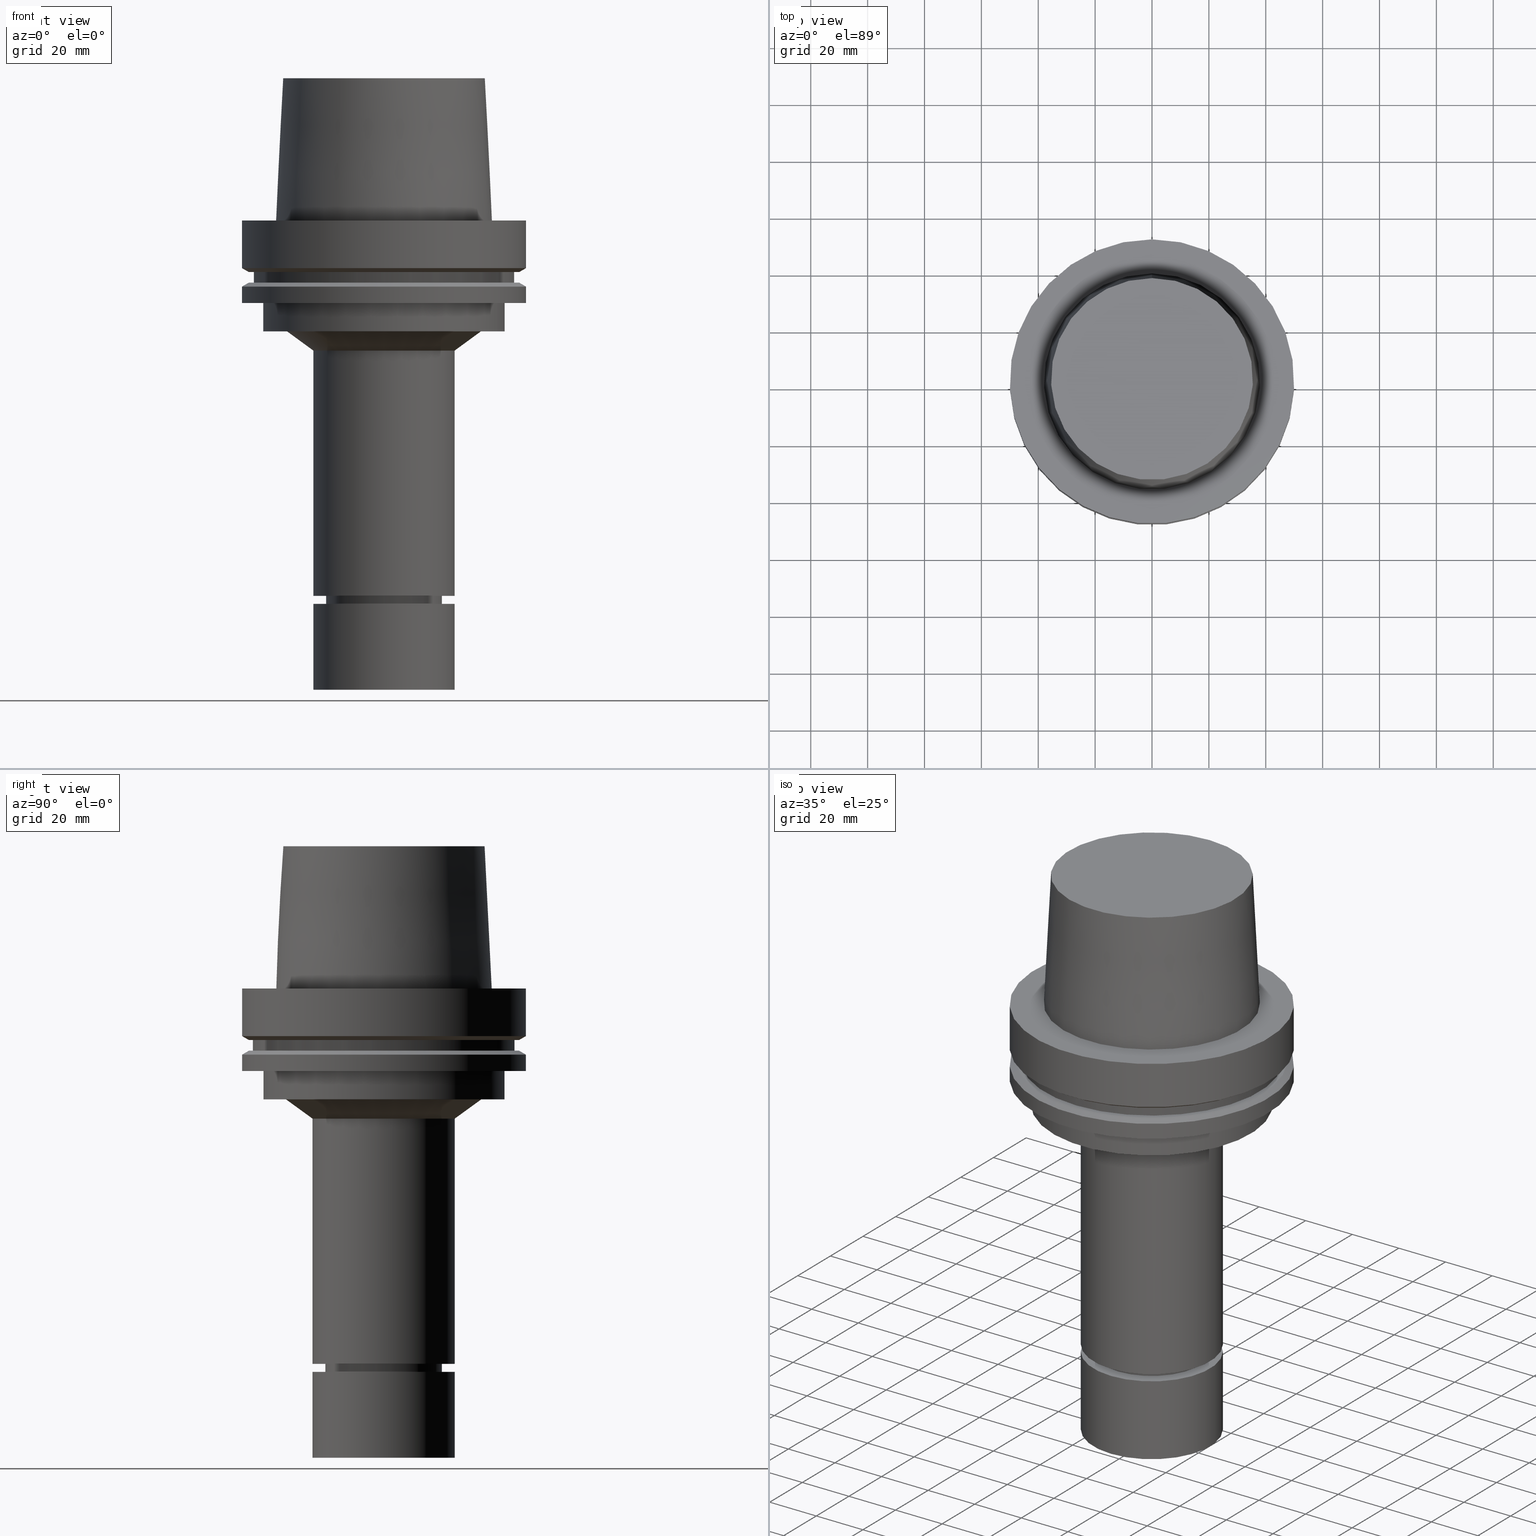
[diagram: canonical four-view strip — front | top / right | iso, engineering-drawing reading convention]
A machine part, canonical four-view strip (front | top / right | iso — engineering-drawing reading convention). The complete STEP part file that produces these views, byte-faithful:
ISO-10303-21;
HEADER;
FILE_DESCRIPTION((''),'1');
FILE_NAME('U:/Translate/02_3D_Field-HP\X2\FF71FF6FFF8CFF9F5916\X0\2013/02_Step_Field-HP\X2\FF71FF6FFF8CFF9F5916\X0\2013/HSK-A100-MEGAER32-165NL.stp','2016-06-22T04:05:55',(''),(''),'Spatial Interop R21 SP3','Kubotek KeyCreator 2011 V10.0.2 (22737)',' ');
FILE_SCHEMA(('automotive_design'));
ENDSEC;
DATA;
#1=MECHANICAL_DESIGN_GEOMETRIC_PRESENTATION_REPRESENTATION(' ',(#14,#15,#16,#17,#18,#19,#20,#21,#22,#23,#24,#25,#26,#27,#28,#29,#30,#31,#32,#33,#34,#35,#36,#37,#38,#39,#40,#41,#42,#43,#44,#45,#46,#47,#48,#49,#50,#51,#52,#53,#54,#55,#56,#57,#58,#59,#60,#61),#10);
#2=PRODUCT_DEFINITION_CONTEXT('',#62,'design');
#3=APPLICATION_PROTOCOL_DEFINITION('INTERNATIONAL STANDARD','automotive_design',1994,#62);
#4=PRODUCT_CATEGORY_RELATIONSHIP('NONE','NONE',#63,#64);
#5=SHAPE_DEFINITION_REPRESENTATION(#65,#66);
#6=PRODUCT_DEFINITION_CONTEXT('',#67,'design');
#7=APPLICATION_PROTOCOL_DEFINITION('INTERNATIONAL STANDARD','automotive_design',1994,#67);
#8=PRODUCT_CATEGORY_RELATIONSHIP('NONE','NONE',#68,#69);
#9=SHAPE_DEFINITION_REPRESENTATION(#70,#71);
#10= (GEOMETRIC_REPRESENTATION_CONTEXT(3)GLOBAL_UNCERTAINTY_ASSIGNED_CONTEXT((#74))GLOBAL_UNIT_ASSIGNED_CONTEXT((#76,#77,#78))REPRESENTATION_CONTEXT('NONE','WORKSPACE'));
#14=STYLED_ITEM('',(#80,#81),#82);
#15=STYLED_ITEM('',(#83),#84);
#16=STYLED_ITEM('',(#85),#86);
#17=STYLED_ITEM('',(#87),#88);
#18=STYLED_ITEM('',(#89,#90),#91);
#19=STYLED_ITEM('',(#92,#93),#94);
#20=STYLED_ITEM('',(#95,#96),#97);
#21=STYLED_ITEM('',(#98),#99);
#22=STYLED_ITEM('',(#100),#101);
#23=STYLED_ITEM('',(#102,#103),#104);
#24=STYLED_ITEM('',(#105,#106),#107);
#25=STYLED_ITEM('',(#108),#109);
#26=STYLED_ITEM('',(#110),#111);
#27=STYLED_ITEM('',(#112),#113);
#28=STYLED_ITEM('',(#114,#115),#116);
#29=STYLED_ITEM('',(#117),#118);
#30=STYLED_ITEM('',(#119),#120);
#31=STYLED_ITEM('',(#121),#122);
#32=STYLED_ITEM('',(#123,#124),#125);
#33=STYLED_ITEM('',(#126,#127),#128);
#34=STYLED_ITEM('',(#129),#130);
#35=STYLED_ITEM('',(#131,#132),#133);
#36=STYLED_ITEM('',(#134,#135),#136);
#37=STYLED_ITEM('',(#137,#138),#139);
#38=STYLED_ITEM('',(#140,#141),#142);
#39=STYLED_ITEM('',(#143,#144),#145);
#40=STYLED_ITEM('',(#146,#147),#148);
#41=STYLED_ITEM('',(#149),#150);
#42=STYLED_ITEM('',(#151),#152);
#43=STYLED_ITEM('',(#153),#154);
#44=STYLED_ITEM('',(#155,#156),#157);
#45=STYLED_ITEM('',(#158),#159);
#46=STYLED_ITEM('',(#160,#161),#162);
#47=STYLED_ITEM('',(#163,#164),#165);
#48=STYLED_ITEM('',(#166),#167);
#49=STYLED_ITEM('',(#168,#169),#170);
#50=STYLED_ITEM('',(#171,#172),#173);
#51=STYLED_ITEM('',(#174,#175),#176);
#52=STYLED_ITEM('',(#177),#178);
#53=STYLED_ITEM('',(#179),#180);
#54=STYLED_ITEM('',(#181),#182);
#55=STYLED_ITEM('',(#183,#184),#185);
#56=STYLED_ITEM('',(#186,#187),#188);
#57=STYLED_ITEM('',(#189),#190);
#58=STYLED_ITEM('',(#191,#192),#193);
#59=STYLED_ITEM('',(#194,#195),#196);
#60=STYLED_ITEM('',(#197),#198);
#61=STYLED_ITEM('',(#199,#200),#201);
#62=APPLICATION_CONTEXT(' ');
#63=PRODUCT_CATEGORY('part','NONE');
#64=PRODUCT_RELATED_PRODUCT_CATEGORY('detail',' ',(#202));
#65=PRODUCT_DEFINITION_SHAPE('NONE','NONE',#203);
#66=ADVANCED_BREP_SHAPE_REPRESENTATION('Unnamed[1]',(#94,#204),#10);
#67=APPLICATION_CONTEXT(' ');
#68=PRODUCT_CATEGORY('part','NONE');
#69=PRODUCT_RELATED_PRODUCT_CATEGORY('detail',' ',(#205));
#70=PRODUCT_DEFINITION_SHAPE('NONE','NONE',#206);
#71=ADVANCED_BREP_SHAPE_REPRESENTATION('Unnamed[1]',(#185,#207),#10);
#74=UNCERTAINTY_MEASURE_WITH_UNIT(LENGTH_MEASURE(1.0E-006),#76,'','');
#76= (CONVERSION_BASED_UNIT('MILLIMETRE',#210)LENGTH_UNIT()NAMED_UNIT(#213));
#77= (NAMED_UNIT(#215)PLANE_ANGLE_UNIT()SI_UNIT($,.RADIAN.));
#78= (NAMED_UNIT(#215)SOLID_ANGLE_UNIT()SI_UNIT($,.STERADIAN.));
#80=PRESENTATION_STYLE_ASSIGNMENT((#221));
#81=PRESENTATION_STYLE_ASSIGNMENT((#222));
#82=ADVANCED_FACE('Unnamed[1]',(#223,#224),#225,.T.);
#83=PRESENTATION_STYLE_ASSIGNMENT((#226));
#84=EDGE_CURVE('Unnamed[1]',#227,#227,#228,.T.);
#85=PRESENTATION_STYLE_ASSIGNMENT((#229));
#86=EDGE_CURVE('Unnamed[1]',#230,#230,#231,.T.);
#87=PRESENTATION_STYLE_ASSIGNMENT((#232));
#88=EDGE_CURVE('Unnamed[1]',#233,#233,#234,.T.);
#89=PRESENTATION_STYLE_ASSIGNMENT((#235));
#90=PRESENTATION_STYLE_ASSIGNMENT((#236));
#91=ADVANCED_FACE('Unnamed[1]',(#237,#238),#239,.T.);
#92=PRESENTATION_STYLE_ASSIGNMENT((#240));
#93=PRESENTATION_STYLE_ASSIGNMENT((#241));
#94=MANIFOLD_SOLID_BREP('Unnamed[1]',#242);
#95=PRESENTATION_STYLE_ASSIGNMENT((#243));
#96=PRESENTATION_STYLE_ASSIGNMENT((#244));
#97=ADVANCED_FACE('Unnamed[1]',(#245,#246),#247,.T.);
#98=PRESENTATION_STYLE_ASSIGNMENT((#248));
#99=EDGE_CURVE('Unnamed[1]',#249,#249,#250,.T.);
#100=PRESENTATION_STYLE_ASSIGNMENT((#251));
#101=EDGE_CURVE('Unnamed[1]',#252,#252,#253,.T.);
#102=PRESENTATION_STYLE_ASSIGNMENT((#254));
#103=PRESENTATION_STYLE_ASSIGNMENT((#255));
#104=ADVANCED_FACE('Unnamed[1]',(#256,#257),#258,.T.);
#105=PRESENTATION_STYLE_ASSIGNMENT((#259));
#106=PRESENTATION_STYLE_ASSIGNMENT((#260));
#107=ADVANCED_FACE('Unnamed[1]',(#261,#262),#263,.T.);
#108=PRESENTATION_STYLE_ASSIGNMENT((#264));
#109=EDGE_CURVE('Unnamed[1]',#265,#265,#266,.T.);
#110=PRESENTATION_STYLE_ASSIGNMENT((#267));
#111=EDGE_CURVE('Unnamed[1]',#268,#268,#269,.T.);
#112=PRESENTATION_STYLE_ASSIGNMENT((#270));
#113=EDGE_CURVE('Unnamed[1]',#271,#271,#272,.T.);
#114=PRESENTATION_STYLE_ASSIGNMENT((#273));
#115=PRESENTATION_STYLE_ASSIGNMENT((#274));
#116=ADVANCED_FACE('Unnamed[1]',(#275,#276),#277,.T.);
#117=PRESENTATION_STYLE_ASSIGNMENT((#278));
#118=EDGE_CURVE('Unnamed[1]',#279,#279,#280,.T.);
#119=PRESENTATION_STYLE_ASSIGNMENT((#281));
#120=EDGE_CURVE('Unnamed[1]',#282,#282,#283,.T.);
#121=PRESENTATION_STYLE_ASSIGNMENT((#284));
#122=EDGE_CURVE('Unnamed[1]',#285,#285,#286,.T.);
#123=PRESENTATION_STYLE_ASSIGNMENT((#287));
#124=PRESENTATION_STYLE_ASSIGNMENT((#288));
#125=ADVANCED_FACE('Unnamed[1]',(#289,#290),#291,.T.);
#126=PRESENTATION_STYLE_ASSIGNMENT((#292));
#127=PRESENTATION_STYLE_ASSIGNMENT((#293));
#128=ADVANCED_FACE('Unnamed[1]',(#294,#295),#296,.T.);
#129=PRESENTATION_STYLE_ASSIGNMENT((#297));
#130=EDGE_CURVE('Unnamed[1]',#298,#298,#299,.T.);
#131=PRESENTATION_STYLE_ASSIGNMENT((#300));
#132=PRESENTATION_STYLE_ASSIGNMENT((#301));
#133=ADVANCED_FACE('Unnamed[1]',(#302),#303,.T.);
#134=PRESENTATION_STYLE_ASSIGNMENT((#304));
#135=PRESENTATION_STYLE_ASSIGNMENT((#305));
#136=ADVANCED_FACE('Unnamed[1]',(#306,#307),#308,.T.);
#137=PRESENTATION_STYLE_ASSIGNMENT((#309));
#138=PRESENTATION_STYLE_ASSIGNMENT((#310));
#139=ADVANCED_FACE('Unnamed[1]',(#311),#312,.T.);
#140=PRESENTATION_STYLE_ASSIGNMENT((#313));
#141=PRESENTATION_STYLE_ASSIGNMENT((#314));
#142=ADVANCED_FACE('Unnamed[1]',(#315),#316,.T.);
#143=PRESENTATION_STYLE_ASSIGNMENT((#317));
#144=PRESENTATION_STYLE_ASSIGNMENT((#318));
#145=ADVANCED_FACE('Unnamed[1]',(#319,#320),#321,.T.);
#146=PRESENTATION_STYLE_ASSIGNMENT((#322));
#147=PRESENTATION_STYLE_ASSIGNMENT((#323));
#148=ADVANCED_FACE('Unnamed[1]',(#324,#325),#326,.T.);
#149=PRESENTATION_STYLE_ASSIGNMENT((#327));
#150=EDGE_CURVE('Unnamed[1]',#328,#328,#329,.T.);
#151=PRESENTATION_STYLE_ASSIGNMENT((#330));
#152=EDGE_CURVE('Unnamed[1]',#331,#331,#332,.T.);
#153=PRESENTATION_STYLE_ASSIGNMENT((#333));
#154=EDGE_CURVE('Unnamed[1]',#334,#334,#335,.T.);
#155=PRESENTATION_STYLE_ASSIGNMENT((#336));
#156=PRESENTATION_STYLE_ASSIGNMENT((#337));
#157=ADVANCED_FACE('Unnamed[1]',(#338,#339),#340,.T.);
#158=PRESENTATION_STYLE_ASSIGNMENT((#341));
#159=EDGE_CURVE('Unnamed[1]',#342,#342,#343,.T.);
#160=PRESENTATION_STYLE_ASSIGNMENT((#344));
#161=PRESENTATION_STYLE_ASSIGNMENT((#345));
#162=ADVANCED_FACE('Unnamed[1]',(#346,#347),#348,.T.);
#163=PRESENTATION_STYLE_ASSIGNMENT((#349));
#164=PRESENTATION_STYLE_ASSIGNMENT((#350));
#165=ADVANCED_FACE('Unnamed[1]',(#351,#352),#353,.T.);
#166=PRESENTATION_STYLE_ASSIGNMENT((#354));
#167=EDGE_CURVE('Unnamed[1]',#355,#355,#356,.T.);
#168=PRESENTATION_STYLE_ASSIGNMENT((#357));
#169=PRESENTATION_STYLE_ASSIGNMENT((#358));
#170=ADVANCED_FACE('Unnamed[1]',(#359,#360),#361,.T.);
#171=PRESENTATION_STYLE_ASSIGNMENT((#362));
#172=PRESENTATION_STYLE_ASSIGNMENT((#363));
#173=ADVANCED_FACE('Unnamed[1]',(#364,#365),#366,.T.);
#174=PRESENTATION_STYLE_ASSIGNMENT((#367));
#175=PRESENTATION_STYLE_ASSIGNMENT((#368));
#176=ADVANCED_FACE('Unnamed[1]',(#369),#370,.T.);
#177=PRESENTATION_STYLE_ASSIGNMENT((#371));
#178=EDGE_CURVE('Unnamed[1]',#372,#372,#373,.T.);
#179=PRESENTATION_STYLE_ASSIGNMENT((#374));
#180=EDGE_CURVE('Unnamed[1]',#375,#375,#376,.T.);
#181=PRESENTATION_STYLE_ASSIGNMENT((#377));
#182=EDGE_CURVE('Unnamed[1]',#378,#378,#379,.T.);
#183=PRESENTATION_STYLE_ASSIGNMENT((#380));
#184=PRESENTATION_STYLE_ASSIGNMENT((#381));
#185=MANIFOLD_SOLID_BREP('Unnamed[1]',#382);
#186=PRESENTATION_STYLE_ASSIGNMENT((#383));
#187=PRESENTATION_STYLE_ASSIGNMENT((#384));
#188=ADVANCED_FACE('Unnamed[1]',(#385,#386),#387,.T.);
#189=PRESENTATION_STYLE_ASSIGNMENT((#388));
#190=EDGE_CURVE('Unnamed[1]',#389,#389,#390,.T.);
#191=PRESENTATION_STYLE_ASSIGNMENT((#391));
#192=PRESENTATION_STYLE_ASSIGNMENT((#392));
#193=ADVANCED_FACE('Unnamed[1]',(#393,#394),#395,.T.);
#194=PRESENTATION_STYLE_ASSIGNMENT((#396));
#195=PRESENTATION_STYLE_ASSIGNMENT((#397));
#196=ADVANCED_FACE('Unnamed[1]',(#398,#399),#400,.T.);
#197=PRESENTATION_STYLE_ASSIGNMENT((#401));
#198=EDGE_CURVE('Unnamed[1]',#402,#402,#403,.T.);
#199=PRESENTATION_STYLE_ASSIGNMENT((#404));
#200=PRESENTATION_STYLE_ASSIGNMENT((#405));
#201=ADVANCED_FACE('Unnamed[1]',(#406,#407),#408,.T.);
#202=PRODUCT('Unnamed[1]','Unnamed[1]','PART-Unnamed[1]-DESC',(#409));
#203=PRODUCT_DEFINITION('NONE','NONE',#410,#2);
#204=AXIS2_PLACEMENT_3D('',#411,#412,#413);
#205=PRODUCT('Unnamed[1]','Unnamed[1]','PART-Unnamed[1]-DESC',(#414));
#206=PRODUCT_DEFINITION('NONE','NONE',#415,#6);
#207=AXIS2_PLACEMENT_3D('',#416,#417,#418);
#210=LENGTH_MEASURE_WITH_UNIT(LENGTH_MEASURE(1.0),#419);
#213=DIMENSIONAL_EXPONENTS(1.0,0.0,0.0,0.0,0.0,0.0,0.0);
#215=DIMENSIONAL_EXPONENTS(0.0,0.0,0.0,0.0,0.0,0.0,0.0);
#221=SURFACE_STYLE_USAGE(.BOTH.,#420);
#222=CURVE_STYLE('',#421,POSITIVE_LENGTH_MEASURE(1000.0),#422);
#223=FACE_BOUND('',#423,.T.);
#224=FACE_OUTER_BOUND('',#424,.T.);
#225=PLANE('',#425);
#226=CURVE_STYLE('',#426,POSITIVE_LENGTH_MEASURE(1000.0),#427);
#227=VERTEX_POINT('',#428);
#228=CIRCLE('',#429,20.0);
#229=CURVE_STYLE('',#430,POSITIVE_LENGTH_MEASURE(1000.0),#431);
#230=VERTEX_POINT('',#432);
#231=CIRCLE('',#433,25.0);
#232=CURVE_STYLE('',#434,POSITIVE_LENGTH_MEASURE(1000.0),#435);
#233=VERTEX_POINT('',#436);
#234=CIRCLE('',#437,46.0);
#235=SURFACE_STYLE_USAGE(.BOTH.,#438);
#236=CURVE_STYLE('',#439,POSITIVE_LENGTH_MEASURE(1000.0),#440);
#237=FACE_BOUND('',#441,.T.);
#238=FACE_BOUND('',#442,.T.);
#239=CYLINDRICAL_SURFACE('',#443,46.0);
#240=SURFACE_STYLE_USAGE(.BOTH.,#444);
#241=CURVE_STYLE('',#445,POSITIVE_LENGTH_MEASURE(1000.0),#446);
#242=CLOSED_SHELL('',(#133,#97,#157,#148,#162,#188,#91,#170,#128,#104,#125,#193,#145,#173,#107,#82,#136,#165,#116,#201,#176));
#243=SURFACE_STYLE_USAGE(.BOTH.,#447);
#244=CURVE_STYLE('',#448,POSITIVE_LENGTH_MEASURE(1000.0),#449);
#245=FACE_BOUND('',#450,.T.);
#246=FACE_BOUND('',#451,.T.);
#247=CONICAL_SURFACE('',#452,36.7500000007484,0.0499583956894843);
#248=CURVE_STYLE('',#453,POSITIVE_LENGTH_MEASURE(1000.0),#454);
#249=VERTEX_POINT('',#455);
#250=CIRCLE('',#456,50.0);
#251=CURVE_STYLE('',#457,POSITIVE_LENGTH_MEASURE(1000.0),#458);
#252=VERTEX_POINT('',#459);
#253=CIRCLE('',#460,47.62259526);
#254=SURFACE_STYLE_USAGE(.BOTH.,#461);
#255=CURVE_STYLE('',#462,POSITIVE_LENGTH_MEASURE(1000.0),#463);
#256=FACE_BOUND('',#464,.T.);
#257=FACE_BOUND('',#465,.T.);
#258=CYLINDRICAL_SURFACE('',#466,50.0);
#259=SURFACE_STYLE_USAGE(.BOTH.,#467);
#260=CURVE_STYLE('',#468,POSITIVE_LENGTH_MEASURE(1000.0),#469);
#261=FACE_BOUND('',#470,.T.);
#262=FACE_BOUND('',#471,.T.);
#263=CYLINDRICAL_SURFACE('',#472,25.0);
#264=CURVE_STYLE('',#473,POSITIVE_LENGTH_MEASURE(1000.0),#474);
#265=VERTEX_POINT('',#475);
#266=CIRCLE('',#476,25.0);
#267=CURVE_STYLE('',#477,POSITIVE_LENGTH_MEASURE(1000.0),#478);
#268=VERTEX_POINT('',#479);
#269=CIRCLE('',#480,20.4999999999911);
#270=CURVE_STYLE('',#481,POSITIVE_LENGTH_MEASURE(1000.0),#482);
#271=VERTEX_POINT('',#483);
#272=CIRCLE('',#484,35.5000000015618);
#273=SURFACE_STYLE_USAGE(.BOTH.,#485);
#274=CURVE_STYLE('',#486,POSITIVE_LENGTH_MEASURE(1000.0),#487);
#275=FACE_BOUND('',#488,.T.);
#276=FACE_BOUND('',#489,.T.);
#277=CYLINDRICAL_SURFACE('',#490,20.0);
#278=CURVE_STYLE('',#491,POSITIVE_LENGTH_MEASURE(1000.0),#492);
#279=VERTEX_POINT('',#493);
#280=CIRCLE('',#494,42.5);
#281=CURVE_STYLE('',#495,POSITIVE_LENGTH_MEASURE(1000.0),#496);
#282=VERTEX_POINT('',#497);
#283=CIRCLE('',#498,20.5000000000012);
#284=CURVE_STYLE('',#499,POSITIVE_LENGTH_MEASURE(1000.0),#500);
#285=VERTEX_POINT('',#501);
#286=CIRCLE('',#502,50.0);
#287=SURFACE_STYLE_USAGE(.BOTH.,#503);
#288=CURVE_STYLE('',#504,POSITIVE_LENGTH_MEASURE(1000.0),#505);
#289=FACE_BOUND('',#506,.T.);
#290=FACE_OUTER_BOUND('',#507,.T.);
#291=PLANE('',#508);
#292=SURFACE_STYLE_USAGE(.BOTH.,#509);
#293=CURVE_STYLE('',#510,POSITIVE_LENGTH_MEASURE(1000.0),#511);
#294=FACE_BOUND('',#512,.T.);
#295=FACE_BOUND('',#513,.T.);
#296=CONICAL_SURFACE('',#514,48.81129763,1.04719755328238);
#297=CURVE_STYLE('',#515,POSITIVE_LENGTH_MEASURE(1000.0),#516);
#298=VERTEX_POINT('',#517);
#299=CIRCLE('',#518,25.0);
#300=SURFACE_STYLE_USAGE(.BOTH.,#519);
#301=CURVE_STYLE('',#520,POSITIVE_LENGTH_MEASURE(1000.0),#521);
#302=FACE_OUTER_BOUND('',#522,.T.);
#303=PLANE('',#523);
#304=SURFACE_STYLE_USAGE(.BOTH.,#524);
#305=CURVE_STYLE('',#525,POSITIVE_LENGTH_MEASURE(1000.0),#526);
#306=FACE_BOUND('',#527,.T.);
#307=FACE_BOUND('',#528,.T.);
#308=CYLINDRICAL_SURFACE('',#529,20.4999999999961);
#309=SURFACE_STYLE_USAGE(.BOTH.,#530);
#310=CURVE_STYLE('',#531,POSITIVE_LENGTH_MEASURE(1000.0),#532);
#311=FACE_OUTER_BOUND('',#533,.T.);
#312=PLANE('',#534);
#313=SURFACE_STYLE_USAGE(.BOTH.,#535);
#314=CURVE_STYLE('',#536,POSITIVE_LENGTH_MEASURE(1000.0),#537);
#315=FACE_OUTER_BOUND('',#538,.T.);
#316=PLANE('',#539);
#317=SURFACE_STYLE_USAGE(.BOTH.,#540);
#318=CURVE_STYLE('',#541,POSITIVE_LENGTH_MEASURE(1000.0),#542);
#319=FACE_BOUND('',#543,.T.);
#320=FACE_OUTER_BOUND('',#544,.T.);
#321=PLANE('',#545);
#322=SURFACE_STYLE_USAGE(.BOTH.,#546);
#323=CURVE_STYLE('',#547,POSITIVE_LENGTH_MEASURE(1000.0),#548);
#324=FACE_BOUND('',#549,.T.);
#325=FACE_BOUND('',#550,.T.);
#326=CYLINDRICAL_SURFACE('',#551,50.0);
#327=CURVE_STYLE('',#552,POSITIVE_LENGTH_MEASURE(1000.0),#553);
#328=VERTEX_POINT('',#554);
#329=CIRCLE('',#555,50.0);
#330=CURVE_STYLE('',#556,POSITIVE_LENGTH_MEASURE(1000.0),#557);
#331=VERTEX_POINT('',#558);
#332=CIRCLE('',#559,34.3193294456171);
#333=CURVE_STYLE('',#560,POSITIVE_LENGTH_MEASURE(1000.0),#561);
#334=VERTEX_POINT('',#562);
#335=CIRCLE('',#563,50.0);
#336=SURFACE_STYLE_USAGE(.BOTH.,#564);
#337=CURVE_STYLE('',#565,POSITIVE_LENGTH_MEASURE(1000.0),#566);
#338=FACE_OUTER_BOUND('',#567,.T.);
#339=FACE_BOUND('',#568,.T.);
#340=PLANE('',#569);
#341=CURVE_STYLE('',#570,POSITIVE_LENGTH_MEASURE(1000.0),#571);
#342=VERTEX_POINT('',#572);
#343=CIRCLE('',#573,25.0);
#344=SURFACE_STYLE_USAGE(.BOTH.,#574);
#345=CURVE_STYLE('',#575,POSITIVE_LENGTH_MEASURE(1000.0),#576);
#346=FACE_BOUND('',#577,.T.);
#347=FACE_BOUND('',#578,.T.);
#348=CONICAL_SURFACE('',#579,48.81129763,1.04719755328238);
#349=SURFACE_STYLE_USAGE(.BOTH.,#580);
#350=CURVE_STYLE('',#581,POSITIVE_LENGTH_MEASURE(1000.0),#582);
#351=FACE_BOUND('',#583,.T.);
#352=FACE_BOUND('',#584,.T.);
#353=CONICAL_SURFACE('',#585,20.2500000000006,0.766162649695678);
#354=CURVE_STYLE('',#586,POSITIVE_LENGTH_MEASURE(1000.0),#587);
#355=VERTEX_POINT('',#588);
#356=CIRCLE('',#589,37.9999999999349);
#357=SURFACE_STYLE_USAGE(.BOTH.,#590);
#358=CURVE_STYLE('',#591,POSITIVE_LENGTH_MEASURE(1000.0),#592);
#359=FACE_OUTER_BOUND('',#593,.T.);
#360=FACE_BOUND('',#594,.T.);
#361=PLANE('',#595);
#362=SURFACE_STYLE_USAGE(.BOTH.,#596);
#363=CURVE_STYLE('',#597,POSITIVE_LENGTH_MEASURE(1000.0),#598);
#364=FACE_BOUND('',#599,.T.);
#365=FACE_BOUND('',#600,.T.);
#366=CONICAL_SURFACE('',#601,29.6596647228086,0.942916776538398);
#367=SURFACE_STYLE_USAGE(.BOTH.,#602);
#368=CURVE_STYLE('',#603,POSITIVE_LENGTH_MEASURE(1000.0),#604);
#369=FACE_OUTER_BOUND('',#605,.T.);
#370=PLANE('',#606);
#371=CURVE_STYLE('',#607,POSITIVE_LENGTH_MEASURE(1000.0),#608);
#372=VERTEX_POINT('',#609);
#373=CIRCLE('',#610,46.0);
#374=CURVE_STYLE('',#611,POSITIVE_LENGTH_MEASURE(1000.0),#612);
#375=VERTEX_POINT('',#613);
#376=CIRCLE('',#614,42.5);
#377=CURVE_STYLE('',#615,POSITIVE_LENGTH_MEASURE(1000.0),#616);
#378=VERTEX_POINT('',#617);
#379=CIRCLE('',#618,20.0000000000001);
#380=SURFACE_STYLE_USAGE(.BOTH.,#619);
#381=CURVE_STYLE('',#620,POSITIVE_LENGTH_MEASURE(1000.0),#621);
#382=CLOSED_SHELL('',(#139,#142,#196));
#383=SURFACE_STYLE_USAGE(.BOTH.,#622);
#384=CURVE_STYLE('',#623,POSITIVE_LENGTH_MEASURE(1000.0),#624);
#385=FACE_BOUND('',#625,.T.);
#386=FACE_OUTER_BOUND('',#626,.T.);
#387=PLANE('',#627);
#388=CURVE_STYLE('',#628,POSITIVE_LENGTH_MEASURE(1000.0),#629);
#389=VERTEX_POINT('',#630);
#390=CIRCLE('',#631,18.8999999999997);
#391=SURFACE_STYLE_USAGE(.BOTH.,#632);
#392=CURVE_STYLE('',#633,POSITIVE_LENGTH_MEASURE(1000.0),#634);
#393=FACE_BOUND('',#635,.T.);
#394=FACE_BOUND('',#636,.T.);
#395=CYLINDRICAL_SURFACE('',#637,42.5);
#396=SURFACE_STYLE_USAGE(.BOTH.,#638);
#397=CURVE_STYLE('',#639,POSITIVE_LENGTH_MEASURE(1000.0),#640);
#398=FACE_BOUND('',#641,.T.);
#399=FACE_BOUND('',#642,.T.);
#400=CYLINDRICAL_SURFACE('',#643,25.0);
#401=CURVE_STYLE('',#644,POSITIVE_LENGTH_MEASURE(1000.0),#645);
#402=VERTEX_POINT('',#646);
#403=CIRCLE('',#647,47.62259526);
#404=SURFACE_STYLE_USAGE(.BOTH.,#648);
#405=CURVE_STYLE('',#649,POSITIVE_LENGTH_MEASURE(1000.0),#650);
#406=FACE_BOUND('',#651,.T.);
#407=FACE_BOUND('',#652,.T.);
#408=CONICAL_SURFACE('',#653,19.4499999999999,0.523598775598222);
#409=PRODUCT_CONTEXT('',#62,'mechanical');
#410=PRODUCT_DEFINITION_FORMATION_WITH_SPECIFIED_SOURCE(' ','NONE',#202,.NOT_KNOWN.);
#411=CARTESIAN_POINT('',(0.0,0.0,0.0));
#412=DIRECTION('',(0.0,0.0,1.0));
#413=DIRECTION('',(1.0,0.0,0.0));
#414=PRODUCT_CONTEXT('',#67,'mechanical');
#415=PRODUCT_DEFINITION_FORMATION_WITH_SPECIFIED_SOURCE(' ','NONE',#205,.NOT_KNOWN.);
#416=CARTESIAN_POINT('',(0.0,0.0,0.0));
#417=DIRECTION('',(0.0,0.0,1.0));
#418=DIRECTION('',(1.0,0.0,0.0));
#419= (NAMED_UNIT(#213)LENGTH_UNIT()SI_UNIT(.MILLI.,.METRE.));
#420=SURFACE_SIDE_STYLE('',(#655));
#421=DRAUGHTING_PRE_DEFINED_CURVE_FONT('continuous');
#422=COLOUR_RGB('',0.0,1.0,0.0);
#423=EDGE_LOOP('',(#656));
#424=EDGE_LOOP('',(#657));
#425=AXIS2_PLACEMENT_3D('',#658,#659,#660);
#426=DRAUGHTING_PRE_DEFINED_CURVE_FONT('continuous');
#427=COLOUR_RGB('',0.0,1.0,0.0);
#428=CARTESIAN_POINT('',(8.49482973562112E-015,20.0,-138.73109767707));
#429=AXIS2_PLACEMENT_3D('',#661,#662,#663);
#430=DRAUGHTING_PRE_DEFINED_CURVE_FONT('continuous');
#431=COLOUR_RGB('',0.0,1.0,0.0);
#432=CARTESIAN_POINT('',(8.25411942625316E-015,25.0,-134.8));
#433=AXIS2_PLACEMENT_3D('',#664,#665,#666);
#434=DRAUGHTING_PRE_DEFINED_CURVE_FONT('continuous');
#435=COLOUR_RGB('',0.0,1.0,0.0);
#436=CARTESIAN_POINT('',(1.10983616172729E-015,46.0,-18.125));
#437=AXIS2_PLACEMENT_3D('',#667,#668,#669);
#438=SURFACE_SIDE_STYLE('',(#670));
#439=DRAUGHTING_PRE_DEFINED_CURVE_FONT('continuous');
#440=COLOUR_RGB('',0.0,1.0,0.0);
#441=EDGE_LOOP('',(#671));
#442=EDGE_LOOP('',(#672));
#443=AXIS2_PLACEMENT_3D('',#673,#674,#675);
#444=SURFACE_SIDE_STYLE('',(#676));
#445=DRAUGHTING_PRE_DEFINED_CURVE_FONT('continuous');
#446=COLOUR_RGB('',0.0,1.0,0.0);
#447=SURFACE_SIDE_STYLE('',(#677));
#448=DRAUGHTING_PRE_DEFINED_CURVE_FONT('continuous');
#449=COLOUR_RGB('',0.0,1.0,0.0);
#450=EDGE_LOOP('',(#678));
#451=EDGE_LOOP('',(#679));
#452=AXIS2_PLACEMENT_3D('',#680,#681,#682);
#453=DRAUGHTING_PRE_DEFINED_CURVE_FONT('continuous');
#454=COLOUR_RGB('',0.0,1.0,0.0);
#455=CARTESIAN_POINT('',(1.0257889421431E-015,50.0,-16.75240474));
#456=AXIS2_PLACEMENT_3D('',#683,#684,#685);
#457=DRAUGHTING_PRE_DEFINED_CURVE_FONT('continuous');
#458=COLOUR_RGB('',0.0,1.0,0.0);
#459=CARTESIAN_POINT('',(1.10983616172729E-015,47.62259526,-18.125));
#460=AXIS2_PLACEMENT_3D('',#686,#687,#688);
#461=SURFACE_SIDE_STYLE('',(#689));
#462=DRAUGHTING_PRE_DEFINED_CURVE_FONT('continuous');
#463=COLOUR_RGB('',0.0,1.0,0.0);
#464=EDGE_LOOP('',(#690));
#465=EDGE_LOOP('',(#691));
#466=AXIS2_PLACEMENT_3D('',#692,#693,#694);
#467=SURFACE_SIDE_STYLE('',(#695));
#468=DRAUGHTING_PRE_DEFINED_CURVE_FONT('continuous');
#469=COLOUR_RGB('',0.0,1.0,0.0);
#470=EDGE_LOOP('',(#696));
#471=EDGE_LOOP('',(#697));
#472=AXIS2_PLACEMENT_3D('',#698,#699,#700);
#473=DRAUGHTING_PRE_DEFINED_CURVE_FONT('continuous');
#474=COLOUR_RGB('',0.0,1.0,0.0);
#475=CARTESIAN_POINT('',(8.08267852271583E-015,25.0,-132.000157569404));
#476=AXIS2_PLACEMENT_3D('',#701,#702,#703);
#477=DRAUGHTING_PRE_DEFINED_CURVE_FONT('continuous');
#478=COLOUR_RGB('',0.0,1.0,0.0);
#479=CARTESIAN_POINT('',(8.08267852271585E-015,20.4999999999911,-132.000157569404));
#480=AXIS2_PLACEMENT_3D('',#704,#705,#706);
#481=DRAUGHTING_PRE_DEFINED_CURVE_FONT('continuous');
#482=COLOUR_RGB('',0.0,1.0,0.0);
#483=CARTESIAN_POINT('',(-3.06161699786838E-015,35.5000000015618,50.0));
#484=AXIS2_PLACEMENT_3D('',#707,#708,#709);
#485=SURFACE_SIDE_STYLE('',(#710));
#486=DRAUGHTING_PRE_DEFINED_CURVE_FONT('continuous');
#487=COLOUR_RGB('',0.0,1.0,0.0);
#488=EDGE_LOOP('',(#711));
#489=EDGE_LOOP('',(#712));
#490=AXIS2_PLACEMENT_3D('',#713,#714,#715);
#491=DRAUGHTING_PRE_DEFINED_CURVE_FONT('continuous');
#492=COLOUR_RGB('',0.0,1.0,0.0);
#493=CARTESIAN_POINT('',(1.77573785876366E-015,42.5,-29.0));
#494=AXIS2_PLACEMENT_3D('',#716,#717,#718);
#495=DRAUGHTING_PRE_DEFINED_CURVE_FONT('continuous');
#496=COLOUR_RGB('',0.0,1.0,0.0);
#497=CARTESIAN_POINT('',(8.46301247845942E-015,20.5000000000012,-138.2114824348));
#498=AXIS2_PLACEMENT_3D('',#719,#720,#721);
#499=DRAUGHTING_PRE_DEFINED_CURVE_FONT('continuous');
#500=COLOUR_RGB('',0.0,1.0,0.0);
#501=CARTESIAN_POINT('',(1.77573785876366E-015,50.0,-29.0));
#502=AXIS2_PLACEMENT_3D('',#722,#723,#724);
#503=SURFACE_SIDE_STYLE('',(#725));
#504=DRAUGHTING_PRE_DEFINED_CURVE_FONT('continuous');
#505=COLOUR_RGB('',0.0,1.0,0.0);
#506=EDGE_LOOP('',(#726));
#507=EDGE_LOOP('',(#727));
#508=AXIS2_PLACEMENT_3D('',#728,#729,#730);
#509=SURFACE_SIDE_STYLE('',(#731));
#510=DRAUGHTING_PRE_DEFINED_CURVE_FONT('continuous');
#511=COLOUR_RGB('',0.0,1.0,0.0);
#512=EDGE_LOOP('',(#732));
#513=EDGE_LOOP('',(#733));
#514=AXIS2_PLACEMENT_3D('',#734,#735,#736);
#515=DRAUGHTING_PRE_DEFINED_CURVE_FONT('continuous');
#516=COLOUR_RGB('',0.0,1.0,0.0);
#517=CARTESIAN_POINT('',(2.80227603553221E-015,25.0,-45.76464067));
#518=AXIS2_PLACEMENT_3D('',#737,#738,#739);
#519=SURFACE_SIDE_STYLE('',(#740));
#520=DRAUGHTING_PRE_DEFINED_CURVE_FONT('continuous');
#521=COLOUR_RGB('',0.0,1.0,0.0);
#522=EDGE_LOOP('',(#741));
#523=AXIS2_PLACEMENT_3D('',#742,#743,#744);
#524=SURFACE_SIDE_STYLE('',(#745));
#525=DRAUGHTING_PRE_DEFINED_CURVE_FONT('continuous');
#526=COLOUR_RGB('',0.0,1.0,0.0);
#527=EDGE_LOOP('',(#746));
#528=EDGE_LOOP('',(#747));
#529=AXIS2_PLACEMENT_3D('',#748,#749,#750);
#530=SURFACE_SIDE_STYLE('',(#751));
#531=DRAUGHTING_PRE_DEFINED_CURVE_FONT('continuous');
#532=COLOUR_RGB('',0.0,1.0,0.0);
#533=EDGE_LOOP('',(#752));
#534=AXIS2_PLACEMENT_3D('',#753,#754,#755);
#535=SURFACE_SIDE_STYLE('',(#756));
#536=DRAUGHTING_PRE_DEFINED_CURVE_FONT('continuous');
#537=COLOUR_RGB('',0.0,1.0,0.0);
#538=EDGE_LOOP('',(#757));
#539=AXIS2_PLACEMENT_3D('',#758,#759,#760);
#540=SURFACE_SIDE_STYLE('',(#761));
#541=DRAUGHTING_PRE_DEFINED_CURVE_FONT('continuous');
#542=COLOUR_RGB('',0.0,1.0,0.0);
#543=EDGE_LOOP('',(#762));
#544=EDGE_LOOP('',(#763));
#545=AXIS2_PLACEMENT_3D('',#764,#765,#766);
#546=SURFACE_SIDE_STYLE('',(#767));
#547=DRAUGHTING_PRE_DEFINED_CURVE_FONT('continuous');
#548=COLOUR_RGB('',0.0,1.0,0.0);
#549=EDGE_LOOP('',(#768));
#550=EDGE_LOOP('',(#769));
#551=AXIS2_PLACEMENT_3D('',#770,#771,#772);
#552=DRAUGHTING_PRE_DEFINED_CURVE_FONT('continuous');
#553=COLOUR_RGB('',0.0,1.0,0.0);
#554=CARTESIAN_POINT('',(-1.81547968506605E-031,50.0,-9.76766004263236E-016));
#555=AXIS2_PLACEMENT_3D('',#773,#774,#775);
#556=DRAUGHTING_PRE_DEFINED_CURVE_FONT('continuous');
#557=COLOUR_RGB('',0.0,1.0,0.0);
#558=CARTESIAN_POINT('',(2.38806125833734E-015,34.3193294456171,-39.0));
#559=AXIS2_PLACEMENT_3D('',#776,#777,#778);
#560=DRAUGHTING_PRE_DEFINED_CURVE_FONT('continuous');
#561=COLOUR_RGB('',0.0,1.0,0.0);
#562=CARTESIAN_POINT('',(1.42350465615161E-015,50.0,-23.24759526));
#563=AXIS2_PLACEMENT_3D('',#779,#780,#781);
#564=SURFACE_SIDE_STYLE('',(#782));
#565=DRAUGHTING_PRE_DEFINED_CURVE_FONT('continuous');
#566=COLOUR_RGB('',0.0,1.0,0.0);
#567=EDGE_LOOP('',(#783));
#568=EDGE_LOOP('',(#784));
#569=AXIS2_PLACEMENT_3D('',#785,#786,#787);
#570=DRAUGHTING_PRE_DEFINED_CURVE_FONT('continuous');
#571=COLOUR_RGB('',0.0,1.0,0.0);
#572=CARTESIAN_POINT('',(1.01033360929657E-014,25.0,-165.0));
#573=AXIS2_PLACEMENT_3D('',#788,#789,#790);
#574=SURFACE_SIDE_STYLE('',(#791));
#575=DRAUGHTING_PRE_DEFINED_CURVE_FONT('continuous');
#576=COLOUR_RGB('',0.0,1.0,0.0);
#577=EDGE_LOOP('',(#792));
#578=EDGE_LOOP('',(#793));
#579=AXIS2_PLACEMENT_3D('',#794,#795,#796);
#580=SURFACE_SIDE_STYLE('',(#797));
#581=DRAUGHTING_PRE_DEFINED_CURVE_FONT('continuous');
#582=COLOUR_RGB('',0.0,1.0,0.0);
#583=EDGE_LOOP('',(#798));
#584=EDGE_LOOP('',(#799));
#585=AXIS2_PLACEMENT_3D('',#800,#801,#802);
#586=DRAUGHTING_PRE_DEFINED_CURVE_FONT('continuous');
#587=COLOUR_RGB('',0.0,1.0,0.0);
#588=CARTESIAN_POINT('',(-3.3636548776863E-032,37.9999999999349,-2.44634216324803E-015));
#589=AXIS2_PLACEMENT_3D('',#803,#804,#805);
#590=SURFACE_SIDE_STYLE('',(#806));
#591=DRAUGHTING_PRE_DEFINED_CURVE_FONT('continuous');
#592=COLOUR_RGB('',0.0,1.0,0.0);
#593=EDGE_LOOP('',(#807));
#594=EDGE_LOOP('',(#808));
#595=AXIS2_PLACEMENT_3D('',#809,#810,#811);
#596=SURFACE_SIDE_STYLE('',(#812));
#597=DRAUGHTING_PRE_DEFINED_CURVE_FONT('continuous');
#598=COLOUR_RGB('',0.0,1.0,0.0);
#599=EDGE_LOOP('',(#813));
#600=EDGE_LOOP('',(#814));
#601=AXIS2_PLACEMENT_3D('',#815,#816,#817);
#602=SURFACE_SIDE_STYLE('',(#818));
#603=DRAUGHTING_PRE_DEFINED_CURVE_FONT('continuous');
#604=COLOUR_RGB('',0.0,1.0,0.0);
#605=EDGE_LOOP('',(#819));
#606=AXIS2_PLACEMENT_3D('',#820,#821,#822);
#607=DRAUGHTING_PRE_DEFINED_CURVE_FONT('continuous');
#608=COLOUR_RGB('',0.0,1.0,0.0);
#609=CARTESIAN_POINT('',(1.33945743656742E-015,46.0,-21.875));
#610=AXIS2_PLACEMENT_3D('',#823,#824,#825);
#611=DRAUGHTING_PRE_DEFINED_CURVE_FONT('continuous');
#612=COLOUR_RGB('',0.0,1.0,0.0);
#613=CARTESIAN_POINT('',(2.38806125833734E-015,42.5,-39.0));
#614=AXIS2_PLACEMENT_3D('',#826,#827,#828);
#615=DRAUGHTING_PRE_DEFINED_CURVE_FONT('continuous');
#616=COLOUR_RGB('',0.0,1.0,0.0);
#617=CARTESIAN_POINT('',(9.31311707717483E-015,20.0000000000001,-152.094744111673));
#618=AXIS2_PLACEMENT_3D('',#829,#830,#831);
#619=SURFACE_SIDE_STYLE('',(#832));
#620=DRAUGHTING_PRE_DEFINED_CURVE_FONT('continuous');
#621=COLOUR_RGB('',0.0,1.0,0.0);
#622=SURFACE_SIDE_STYLE('',(#833));
#623=DRAUGHTING_PRE_DEFINED_CURVE_FONT('continuous');
#624=COLOUR_RGB('',0.0,1.0,0.0);
#625=EDGE_LOOP('',(#834));
#626=EDGE_LOOP('',(#835));
#627=AXIS2_PLACEMENT_3D('',#836,#837,#838);
#628=DRAUGHTING_PRE_DEFINED_CURVE_FONT('continuous');
#629=COLOUR_RGB('',0.0,1.0,0.0);
#630=CARTESIAN_POINT('',(9.42978035343463E-015,18.8999999999997,-154.0));
#631=AXIS2_PLACEMENT_3D('',#839,#840,#841);
#632=SURFACE_SIDE_STYLE('',(#842));
#633=DRAUGHTING_PRE_DEFINED_CURVE_FONT('continuous');
#634=COLOUR_RGB('',0.0,1.0,0.0);
#635=EDGE_LOOP('',(#843));
#636=EDGE_LOOP('',(#844));
#637=AXIS2_PLACEMENT_3D('',#845,#846,#847);
#638=SURFACE_SIDE_STYLE('',(#848));
#639=DRAUGHTING_PRE_DEFINED_CURVE_FONT('continuous');
#640=COLOUR_RGB('',0.0,1.0,0.0);
#641=EDGE_LOOP('',(#849));
#642=EDGE_LOOP('',(#850));
#643=AXIS2_PLACEMENT_3D('',#851,#852,#853);
#644=DRAUGHTING_PRE_DEFINED_CURVE_FONT('continuous');
#645=COLOUR_RGB('',0.0,1.0,0.0);
#646=CARTESIAN_POINT('',(1.33945743656742E-015,47.62259526,-21.875));
#647=AXIS2_PLACEMENT_3D('',#854,#855,#856);
#648=SURFACE_SIDE_STYLE('',(#857));
#649=DRAUGHTING_PRE_DEFINED_CURVE_FONT('continuous');
#650=COLOUR_RGB('',0.0,1.0,0.0);
#651=EDGE_LOOP('',(#858));
#652=EDGE_LOOP('',(#859));
#653=AXIS2_PLACEMENT_3D('',#860,#861,#862);
#655=SURFACE_STYLE_FILL_AREA(#863);
#656=ORIENTED_EDGE('',*,*,#111,.F.);
#657=ORIENTED_EDGE('',*,*,#109,.T.);
#658=CARTESIAN_POINT('',(8.08267852271584E-015,22.7499999999956,-132.000157569404));
#659=DIRECTION('',(6.12323399573677E-017,1.07493366972339E-013,-1.0));
#660=DIRECTION('',(-6.58689754234312E-030,1.0,1.07493366972339E-013));
#661=CARTESIAN_POINT('',(8.49482973562112E-015,1.69896594712422E-014,-138.73109767707));
#662=DIRECTION('',(6.12323399573677E-017,1.22464679914735E-016,-1.0));
#663=DIRECTION('',(-1.23259516440783E-032,1.0,1.22464679914735E-016));
#664=CARTESIAN_POINT('',(8.25411942625316E-015,1.65082388525063E-014,-134.8));
#665=DIRECTION('',(6.12323399573677E-017,1.22464679914735E-016,-1.0));
#666=DIRECTION('',(-1.23259516440783E-032,1.0,1.22464679914735E-016));
#667=CARTESIAN_POINT('',(1.10983616172729E-015,2.21967232345458E-015,-18.125));
#668=DIRECTION('',(6.12323399573677E-017,1.22464679914735E-016,-1.0));
#669=DIRECTION('',(-1.23259516440783E-032,1.0,1.22464679914735E-016));
#670=SURFACE_STYLE_FILL_AREA(#864);
#671=ORIENTED_EDGE('',*,*,#178,.F.);
#672=ORIENTED_EDGE('',*,*,#88,.T.);
#673=CARTESIAN_POINT('',(1.22464679914735E-015,2.44929359829471E-015,-20.0));
#674=DIRECTION('',(6.12323399573677E-017,1.22464679914735E-016,-1.0));
#675=DIRECTION('',(-1.23259516440783E-032,1.0,1.22464679914735E-016));
#676=SURFACE_STYLE_FILL_AREA(#865);
#677=SURFACE_STYLE_FILL_AREA(#866);
#678=ORIENTED_EDGE('',*,*,#167,.F.);
#679=ORIENTED_EDGE('',*,*,#113,.T.);
#680=CARTESIAN_POINT('',(-1.53080849893419E-015,-3.06161699786838E-015,25.0));
#681=DIRECTION('',(6.12323399573676E-017,1.22464679914735E-016,-1.0));
#682=DIRECTION('',(-1.23259516440783E-032,1.0,1.22464679914735E-016));
#683=CARTESIAN_POINT('',(1.0257889421431E-015,2.05157788428619E-015,-16.75240474));
#684=DIRECTION('',(6.12323399573677E-017,1.22464679914735E-016,-1.0));
#685=DIRECTION('',(-1.23259516440783E-032,1.0,1.22464679914735E-016));
#686=CARTESIAN_POINT('',(1.10983616172729E-015,2.21967232345458E-015,-18.125));
#687=DIRECTION('',(6.12323399573676E-017,1.22464679914735E-016,-1.0));
#688=DIRECTION('',(-1.23259516440783E-032,1.0,1.22464679914735E-016));
#689=SURFACE_STYLE_FILL_AREA(#867);
#690=ORIENTED_EDGE('',*,*,#122,.F.);
#691=ORIENTED_EDGE('',*,*,#154,.T.);
#692=CARTESIAN_POINT('',(1.59962125745764E-015,3.19924251491527E-015,-26.12379763));
#693=DIRECTION('',(6.12323399573677E-017,1.22464679914735E-016,-1.0));
#694=DIRECTION('',(-1.23259516440783E-032,1.0,1.22464679914735E-016));
#695=SURFACE_STYLE_FILL_AREA(#868);
#696=ORIENTED_EDGE('',*,*,#109,.F.);
#697=ORIENTED_EDGE('',*,*,#130,.T.);
#698=CARTESIAN_POINT('',(5.44247727912402E-015,1.0884954558248E-014,-88.8823991197018));
#699=DIRECTION('',(6.12323399573677E-017,1.22464679914735E-016,-1.0));
#700=DIRECTION('',(-1.23259516440783E-032,1.0,1.22464679914735E-016));
#701=CARTESIAN_POINT('',(8.08267852271583E-015,1.61653570454317E-014,-132.000157569404));
#702=DIRECTION('',(6.12323399573677E-017,1.22464679914735E-016,-1.0));
#703=DIRECTION('',(-1.23259516440783E-032,1.0,1.22464679914735E-016));
#704=CARTESIAN_POINT('',(8.08267852271585E-015,1.61653570454317E-014,-132.000157569404));
#705=DIRECTION('',(6.12323399573677E-017,1.22464679914735E-016,-1.0));
#706=DIRECTION('',(-1.23259516440783E-032,1.0,1.22464679914735E-016));
#707=CARTESIAN_POINT('',(-3.06161699786838E-015,-6.12323399573676E-015,50.0));
#708=DIRECTION('',(6.12323399573677E-017,1.22464679914735E-016,-1.0));
#709=DIRECTION('',(-1.23259516440783E-032,1.0,1.22464679914735E-016));
#710=SURFACE_STYLE_FILL_AREA(#869);
#711=ORIENTED_EDGE('',*,*,#182,.F.);
#712=ORIENTED_EDGE('',*,*,#84,.T.);
#713=CARTESIAN_POINT('',(8.90397340639798E-015,1.78079468127959E-014,-145.412920894372));
#714=DIRECTION('',(6.12323399573677E-017,1.22464679914735E-016,-1.0));
#715=DIRECTION('',(-1.23259516440783E-032,1.0,1.22464679914735E-016));
#716=CARTESIAN_POINT('',(1.77573785876366E-015,3.55147571752733E-015,-29.0));
#717=DIRECTION('',(6.12323399573677E-017,1.22464679914735E-016,-1.0));
#718=DIRECTION('',(-1.23259516440783E-032,1.0,1.22464679914735E-016));
#719=CARTESIAN_POINT('',(8.46301247845942E-015,1.69260249569188E-014,-138.2114824348));
#720=DIRECTION('',(6.12323399573677E-017,1.22464679914735E-016,-1.0));
#721=DIRECTION('',(-1.23259516440783E-032,1.0,1.22464679914735E-016));
#722=CARTESIAN_POINT('',(1.77573785876366E-015,3.55147571752733E-015,-29.0));
#723=DIRECTION('',(6.12323399573677E-017,1.22464679914735E-016,-1.0));
#724=DIRECTION('',(-1.23259516440783E-032,1.0,1.22464679914735E-016));
#725=SURFACE_STYLE_FILL_AREA(#870);
#726=ORIENTED_EDGE('',*,*,#118,.F.);
#727=ORIENTED_EDGE('',*,*,#122,.T.);
#728=CARTESIAN_POINT('',(1.77573785876366E-015,46.25,-29.0));
#729=DIRECTION('',(6.12323399573677E-017,1.22464679914735E-016,-1.0));
#730=DIRECTION('',(-1.23259516440783E-032,1.0,1.22464679914735E-016));
#731=SURFACE_STYLE_FILL_AREA(#871);
#732=ORIENTED_EDGE('',*,*,#154,.F.);
#733=ORIENTED_EDGE('',*,*,#198,.T.);
#734=CARTESIAN_POINT('',(1.38148104635951E-015,2.76296209271903E-015,-22.56129763));
#735=DIRECTION('',(6.12323399573677E-017,1.22464679914735E-016,-1.0));
#736=DIRECTION('',(-1.23259516440783E-032,1.0,1.22464679914735E-016));
#737=CARTESIAN_POINT('',(2.80227603553221E-015,5.60455207106442E-015,-45.76464067));
#738=DIRECTION('',(6.12323399573677E-017,1.22464679914735E-016,-1.0));
#739=DIRECTION('',(-1.23259516440783E-032,1.0,1.22464679914735E-016));
#740=SURFACE_STYLE_FILL_AREA(#872);
#741=ORIENTED_EDGE('',*,*,#113,.F.);
#742=CARTESIAN_POINT('',(-3.06161699786838E-015,17.7500000007809,50.0));
#743=DIRECTION('',(-6.12323399573677E-017,-1.22464679914735E-016,1.0));
#744=DIRECTION('',(1.23259516440783E-032,-1.0,-1.22464679914735E-016));
#745=SURFACE_STYLE_FILL_AREA(#873);
#746=ORIENTED_EDGE('',*,*,#120,.F.);
#747=ORIENTED_EDGE('',*,*,#111,.T.);
#748=CARTESIAN_POINT('',(8.27284550058764E-015,1.65456910011753E-014,-135.105820002102));
#749=DIRECTION('',(6.12323399573676E-017,1.22464679914735E-016,-1.0));
#750=DIRECTION('',(-1.23259516440783E-032,1.0,1.22464679914735E-016));
#751=SURFACE_STYLE_FILL_AREA(#874);
#752=ORIENTED_EDGE('',*,*,#159,.T.);
#753=CARTESIAN_POINT('',(1.01033360929657E-014,12.5,-165.0));
#754=DIRECTION('',(6.12323399573677E-017,1.22464679914735E-016,-1.0));
#755=DIRECTION('',(-1.23259516440783E-032,1.0,1.22464679914735E-016));
#756=SURFACE_STYLE_FILL_AREA(#875);
#757=ORIENTED_EDGE('',*,*,#86,.F.);
#758=CARTESIAN_POINT('',(8.25411942625316E-015,12.5,-134.8));
#759=DIRECTION('',(-6.12323399573677E-017,-1.22464679914735E-016,1.0));
#760=DIRECTION('',(1.23259516440783E-032,-1.0,-1.22464679914735E-016));
#761=SURFACE_STYLE_FILL_AREA(#876);
#762=ORIENTED_EDGE('',*,*,#152,.F.);
#763=ORIENTED_EDGE('',*,*,#180,.T.);
#764=CARTESIAN_POINT('',(2.38806125833734E-015,38.4096647228086,-39.0));
#765=DIRECTION('',(6.12323399573677E-017,1.22464679914735E-016,-1.0));
#766=DIRECTION('',(-1.23259516440783E-032,1.0,1.22464679914735E-016));
#767=SURFACE_STYLE_FILL_AREA(#877);
#768=ORIENTED_EDGE('',*,*,#99,.F.);
#769=ORIENTED_EDGE('',*,*,#150,.T.);
#770=CARTESIAN_POINT('',(5.12894471071548E-016,1.0257889421431E-015,-8.37620236999999));
#771=DIRECTION('',(6.12323399573677E-017,1.22464679914735E-016,-1.0));
#772=DIRECTION('',(-1.23259516440783E-032,1.0,1.22464679914735E-016));
#773=CARTESIAN_POINT('',(0.0,0.0,0.0));
#774=DIRECTION('',(6.12323399573677E-017,1.22464679914735E-016,-1.0));
#775=DIRECTION('',(-1.23259516440783E-032,1.0,1.22464679914735E-016));
#776=CARTESIAN_POINT('',(2.38806125833734E-015,4.77612251667468E-015,-39.0));
#777=DIRECTION('',(6.12323399573677E-017,1.22464679914735E-016,-1.0));
#778=DIRECTION('',(-1.23259516440783E-032,1.0,1.22464679914735E-016));
#779=CARTESIAN_POINT('',(1.42350465615161E-015,2.84700931230322E-015,-23.24759526));
#780=DIRECTION('',(6.12323399573677E-017,1.22464679914735E-016,-1.0));
#781=DIRECTION('',(-1.23259516440783E-032,1.0,1.22464679914735E-016));
#782=SURFACE_STYLE_FILL_AREA(#878);
#783=ORIENTED_EDGE('',*,*,#150,.F.);
#784=ORIENTED_EDGE('',*,*,#167,.T.);
#785=CARTESIAN_POINT('',(-1.07592258641734E-031,43.9999999999675,-1.71155408375563E-015));
#786=DIRECTION('',(-6.12323399573677E-017,-1.22464679914735E-016,1.0));
#787=DIRECTION('',(1.23259516440783E-032,-1.0,-1.22464679914735E-016));
#788=CARTESIAN_POINT('',(1.01033360929657E-014,2.02066721859313E-014,-165.0));
#789=DIRECTION('',(6.12323399573677E-017,1.22464679914735E-016,-1.0));
#790=DIRECTION('',(-1.23259516440783E-032,1.0,1.22464679914735E-016));
#791=SURFACE_STYLE_FILL_AREA(#879);
#792=ORIENTED_EDGE('',*,*,#101,.F.);
#793=ORIENTED_EDGE('',*,*,#99,.T.);
#794=CARTESIAN_POINT('',(1.06781255193519E-015,2.13562510387038E-015,-17.43870237));
#795=DIRECTION('',(-6.12323399573677E-017,-1.22464679914735E-016,1.0));
#796=DIRECTION('',(-1.23259516440783E-032,1.0,1.22464679914735E-016));
#797=SURFACE_STYLE_FILL_AREA(#880);
#798=ORIENTED_EDGE('',*,*,#84,.F.);
#799=ORIENTED_EDGE('',*,*,#120,.T.);
#800=CARTESIAN_POINT('',(8.47892110704027E-015,1.69578422140805E-014,-138.471290055935));
#801=DIRECTION('',(-6.12323399573677E-017,-1.22464679914735E-016,1.0));
#802=DIRECTION('',(-1.23259516440783E-032,1.0,1.22464679914735E-016));
#803=CARTESIAN_POINT('',(0.0,0.0,0.0));
#804=DIRECTION('',(6.12323399573677E-017,1.22464679914735E-016,-1.0));
#805=DIRECTION('',(-1.23259516440783E-032,1.0,1.22464679914735E-016));
#806=SURFACE_STYLE_FILL_AREA(#881);
#807=ORIENTED_EDGE('',*,*,#198,.F.);
#808=ORIENTED_EDGE('',*,*,#178,.T.);
#809=CARTESIAN_POINT('',(1.33945743656742E-015,46.81129763,-21.875));
#810=DIRECTION('',(-6.12323399573677E-017,-1.22464679914735E-016,1.0));
#811=DIRECTION('',(1.23259516440783E-032,-1.0,-1.22464679914735E-016));
#812=SURFACE_STYLE_FILL_AREA(#882);
#813=ORIENTED_EDGE('',*,*,#130,.F.);
#814=ORIENTED_EDGE('',*,*,#152,.T.);
#815=CARTESIAN_POINT('',(2.59516864693478E-015,5.19033729386955E-015,-42.382320335));
#816=DIRECTION('',(-6.12323399573677E-017,-1.22464679914735E-016,1.0));
#817=DIRECTION('',(-1.23259516440783E-032,1.0,1.22464679914735E-016));
#818=SURFACE_STYLE_FILL_AREA(#883);
#819=ORIENTED_EDGE('',*,*,#190,.T.);
#820=CARTESIAN_POINT('',(9.42978035343462E-015,9.44999999999987,-154.0));
#821=DIRECTION('',(6.12323399573677E-017,-1.64192709674106E-014,-1.0));
#822=DIRECTION('',(1.00056322899785E-030,1.0,-1.64192709674106E-014));
#823=CARTESIAN_POINT('',(1.33945743656742E-015,2.67891487313483E-015,-21.875));
#824=DIRECTION('',(6.12323399573677E-017,1.22464679914735E-016,-1.0));
#825=DIRECTION('',(-1.23259516440783E-032,1.0,1.22464679914735E-016));
#826=CARTESIAN_POINT('',(2.38806125833734E-015,4.77612251667468E-015,-39.0));
#827=DIRECTION('',(6.12323399573677E-017,1.22464679914735E-016,-1.0));
#828=DIRECTION('',(-1.23259516440783E-032,1.0,1.22464679914735E-016));
#829=CARTESIAN_POINT('',(9.31311707717483E-015,1.86262341543497E-014,-152.094744111673));
#830=DIRECTION('',(6.12323399573677E-017,1.22464679914735E-016,-1.0));
#831=DIRECTION('',(-1.23259516440783E-032,1.0,1.22464679914735E-016));
#832=SURFACE_STYLE_FILL_AREA(#884);
#833=SURFACE_STYLE_FILL_AREA(#885);
#834=ORIENTED_EDGE('',*,*,#88,.F.);
#835=ORIENTED_EDGE('',*,*,#101,.T.);
#836=CARTESIAN_POINT('',(1.10983616172729E-015,46.81129763,-18.125));
#837=DIRECTION('',(6.12323399573677E-017,1.22464679914735E-016,-1.0));
#838=DIRECTION('',(-1.23259516440783E-032,1.0,1.22464679914735E-016));
#839=CARTESIAN_POINT('',(9.42978035343463E-015,1.88595607068693E-014,-154.0));
#840=DIRECTION('',(6.12323399573677E-017,1.22464679914735E-016,-1.0));
#841=DIRECTION('',(-1.23259516440783E-032,1.0,1.22464679914735E-016));
#842=SURFACE_STYLE_FILL_AREA(#886);
#843=ORIENTED_EDGE('',*,*,#180,.F.);
#844=ORIENTED_EDGE('',*,*,#118,.T.);
#845=CARTESIAN_POINT('',(2.0818995585505E-015,4.163799117101E-015,-34.0));
#846=DIRECTION('',(6.12323399573677E-017,1.22464679914735E-016,-1.0));
#847=DIRECTION('',(-1.23259516440783E-032,1.0,1.22464679914735E-016));
#848=SURFACE_STYLE_FILL_AREA(#887);
#849=ORIENTED_EDGE('',*,*,#159,.F.);
#850=ORIENTED_EDGE('',*,*,#86,.T.);
#851=CARTESIAN_POINT('',(9.17872775960941E-015,1.83574555192188E-014,-149.9));
#852=DIRECTION('',(6.12323399573677E-017,1.22464679914735E-016,-1.0));
#853=DIRECTION('',(-1.23259516440783E-032,1.0,1.22464679914735E-016));
#854=CARTESIAN_POINT('',(1.33945743656742E-015,2.67891487313483E-015,-21.875));
#855=DIRECTION('',(6.12323399573676E-017,1.22464679914735E-016,-1.0));
#856=DIRECTION('',(-1.23259516440783E-032,1.0,1.22464679914735E-016));
#857=SURFACE_STYLE_FILL_AREA(#888);
#858=ORIENTED_EDGE('',*,*,#190,.F.);
#859=ORIENTED_EDGE('',*,*,#182,.T.);
#860=CARTESIAN_POINT('',(9.37144871530473E-015,1.87428974306095E-014,-153.047372055837));
#861=DIRECTION('',(-6.12323399573677E-017,-1.22464679914735E-016,1.0));
#862=DIRECTION('',(-1.23259516440783E-032,1.0,1.22464679914735E-016));
#863=FILL_AREA_STYLE('',(#889));
#864=FILL_AREA_STYLE('',(#890));
#865=FILL_AREA_STYLE('',(#891));
#866=FILL_AREA_STYLE('',(#892));
#867=FILL_AREA_STYLE('',(#893));
#868=FILL_AREA_STYLE('',(#894));
#869=FILL_AREA_STYLE('',(#895));
#870=FILL_AREA_STYLE('',(#896));
#871=FILL_AREA_STYLE('',(#897));
#872=FILL_AREA_STYLE('',(#898));
#873=FILL_AREA_STYLE('',(#899));
#874=FILL_AREA_STYLE('',(#900));
#875=FILL_AREA_STYLE('',(#901));
#876=FILL_AREA_STYLE('',(#902));
#877=FILL_AREA_STYLE('',(#903));
#878=FILL_AREA_STYLE('',(#904));
#879=FILL_AREA_STYLE('',(#905));
#880=FILL_AREA_STYLE('',(#906));
#881=FILL_AREA_STYLE('',(#907));
#882=FILL_AREA_STYLE('',(#908));
#883=FILL_AREA_STYLE('',(#909));
#884=FILL_AREA_STYLE('',(#910));
#885=FILL_AREA_STYLE('',(#911));
#886=FILL_AREA_STYLE('',(#912));
#887=FILL_AREA_STYLE('',(#913));
#888=FILL_AREA_STYLE('',(#914));
#889=FILL_AREA_STYLE_COLOUR('',#915);
#890=FILL_AREA_STYLE_COLOUR('',#916);
#891=FILL_AREA_STYLE_COLOUR('',#917);
#892=FILL_AREA_STYLE_COLOUR('',#918);
#893=FILL_AREA_STYLE_COLOUR('',#919);
#894=FILL_AREA_STYLE_COLOUR('',#920);
#895=FILL_AREA_STYLE_COLOUR('',#921);
#896=FILL_AREA_STYLE_COLOUR('',#922);
#897=FILL_AREA_STYLE_COLOUR('',#923);
#898=FILL_AREA_STYLE_COLOUR('',#924);
#899=FILL_AREA_STYLE_COLOUR('',#925);
#900=FILL_AREA_STYLE_COLOUR('',#926);
#901=FILL_AREA_STYLE_COLOUR('',#927);
#902=FILL_AREA_STYLE_COLOUR('',#928);
#903=FILL_AREA_STYLE_COLOUR('',#929);
#904=FILL_AREA_STYLE_COLOUR('',#930);
#905=FILL_AREA_STYLE_COLOUR('',#931);
#906=FILL_AREA_STYLE_COLOUR('',#932);
#907=FILL_AREA_STYLE_COLOUR('',#933);
#908=FILL_AREA_STYLE_COLOUR('',#934);
#909=FILL_AREA_STYLE_COLOUR('',#935);
#910=FILL_AREA_STYLE_COLOUR('',#936);
#911=FILL_AREA_STYLE_COLOUR('',#937);
#912=FILL_AREA_STYLE_COLOUR('',#938);
#913=FILL_AREA_STYLE_COLOUR('',#939);
#914=FILL_AREA_STYLE_COLOUR('',#940);
#915=COLOUR_RGB('',0.0,1.0,0.0);
#916=COLOUR_RGB('',0.0,1.0,0.0);
#917=COLOUR_RGB('',0.0,1.0,0.0);
#918=COLOUR_RGB('',0.0,1.0,0.0);
#919=COLOUR_RGB('',0.0,1.0,0.0);
#920=COLOUR_RGB('',0.0,1.0,0.0);
#921=COLOUR_RGB('',0.0,1.0,0.0);
#922=COLOUR_RGB('',0.0,1.0,0.0);
#923=COLOUR_RGB('',0.0,1.0,0.0);
#924=COLOUR_RGB('',0.0,1.0,0.0);
#925=COLOUR_RGB('',0.0,1.0,0.0);
#926=COLOUR_RGB('',0.0,1.0,0.0);
#927=COLOUR_RGB('',0.0,1.0,0.0);
#928=COLOUR_RGB('',0.0,1.0,0.0);
#929=COLOUR_RGB('',0.0,1.0,0.0);
#930=COLOUR_RGB('',0.0,1.0,0.0);
#931=COLOUR_RGB('',0.0,1.0,0.0);
#932=COLOUR_RGB('',0.0,1.0,0.0);
#933=COLOUR_RGB('',0.0,1.0,0.0);
#934=COLOUR_RGB('',0.0,1.0,0.0);
#935=COLOUR_RGB('',0.0,1.0,0.0);
#936=COLOUR_RGB('',0.0,1.0,0.0);
#937=COLOUR_RGB('',0.0,1.0,0.0);
#938=COLOUR_RGB('',0.0,1.0,0.0);
#939=COLOUR_RGB('',0.0,1.0,0.0);
#940=COLOUR_RGB('',0.0,1.0,0.0);
ENDSEC;
END-ISO-10303-21;
